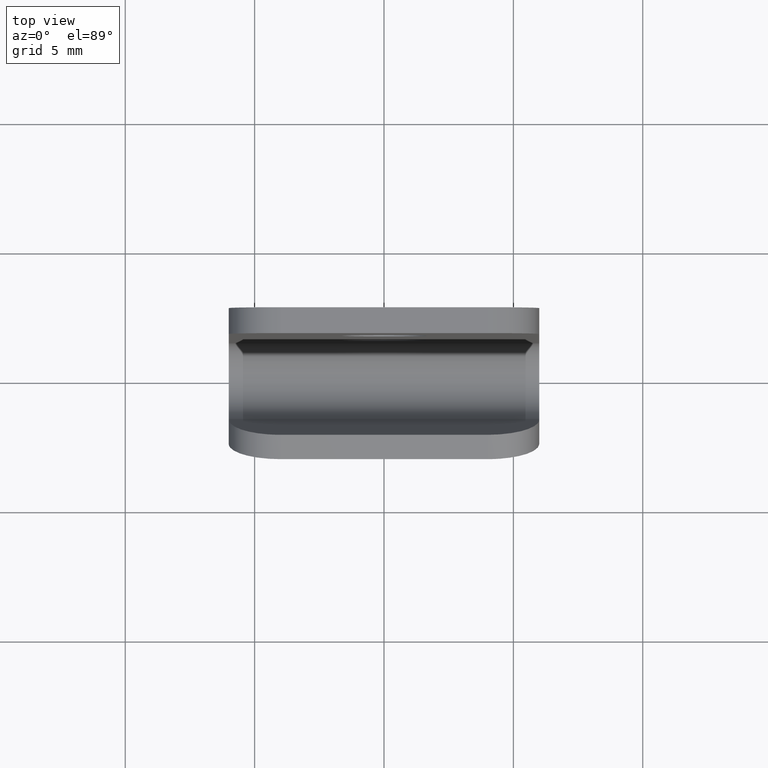
[diagram: clean part render]
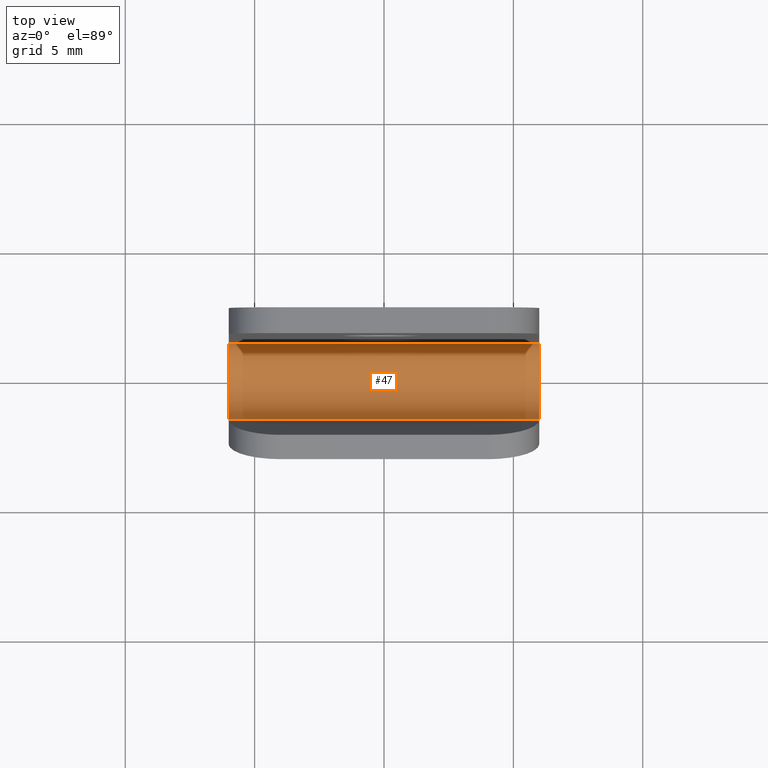
[diagram: same view with one face highlighted and labeled with its STEP entity id]
A machine part, top view. The second image highlights one B-rep face of the part: STEP entity #47.
In plain terms, the highlighted cylindrical surface (partial cylindrical patch) has radius 1.5 mm, axis along (1, -0, -0).
Its self-contained STEP definition (entity closure, byte-faithful):
#47=ADVANCED_FACE('',(#129),#128,.F.);
#128=CYLINDRICAL_SURFACE('',#280,1.50000000000E+00);
#129=FACE_OUTER_BOUND('',#281,.T.);
#277=CARTESIAN_POINT('',(9.94000000000E+02,0.00000000000E+00,2.50000000000E+00));
#278=DIRECTION('',(1.00000000000E+00,-0.00000000000E+00,-0.00000000000E+00));
#279=DIRECTION('',(0.00000000000E+00,-1.56434465040E-01,9.87688340595E-01));
#280=AXIS2_PLACEMENT_3D('',#277,#278,#279);
#281=EDGE_LOOP('',(#376,#377,#378,#379));
#376=ORIENTED_EDGE('',*,*,#442,.T.);
#377=ORIENTED_EDGE('',*,*,#457,.F.);
#378=ORIENTED_EDGE('',*,*,#456,.F.);
#379=ORIENTED_EDGE('',*,*,#458,.T.);
#442=EDGE_CURVE('',#550,#543,#551,.T.);
#456=EDGE_CURVE('',#637,#609,#644,.T.);
#457=EDGE_CURVE('',#609,#543,#650,.T.);
#458=EDGE_CURVE('',#637,#550,#656,.T.);
#543=VERTEX_POINT('',#836);
#550=VERTEX_POINT('',#840);
#551=CIRCLE('',#844,1.50000000000E+00);
#609=VERTEX_POINT('',#874);
#637=VERTEX_POINT('',#891);
#644=CIRCLE('',#898,1.50000000000E+00);
#650=LINE('',#899,#900);
#656=LINE('',#902,#903);
#836=CARTESIAN_POINT('',(-6.00000000000E+00,-1.42658477444E+00,2.03647450844E+00));
#840=CARTESIAN_POINT('',(-6.00000000000E+00,1.50000000000E+00,2.50000000000E+00));
#841=CARTESIAN_POINT('',(-6.00000000000E+00,0.00000000000E+00,2.50000000000E+00));
#842=DIRECTION('',(-1.00000000000E+00,-0.00000000000E+00,0.00000000000E+00));
#843=DIRECTION('',(0.00000000000E+00,-0.00000000000E+00,1.00000000000E+00));
#844=AXIS2_PLACEMENT_3D('',#841,#842,#843);
#874=CARTESIAN_POINT('',(6.00000000000E+00,-1.42658477444E+00,2.03647450844E+00));
#891=CARTESIAN_POINT('',(6.00000000000E+00,1.50000000000E+00,2.50000000000E+00));
#895=CARTESIAN_POINT('',(6.00000000000E+00,0.00000000000E+00,2.50000000000E+00));
#896=DIRECTION('',(-1.00000000000E+00,-0.00000000000E+00,0.00000000000E+00));
#897=DIRECTION('',(0.00000000000E+00,-0.00000000000E+00,1.00000000000E+00));
#898=AXIS2_PLACEMENT_3D('',#895,#896,#897);
#899=CARTESIAN_POINT('',(6.00000000000E+00,-1.42658477444E+00,2.03647450844E+00));
#900=VECTOR('',#901,1.20000000000E+01);
#901=DIRECTION('',(-1.00000000000E+00,0.00000000000E+00,0.00000000000E+00));
#902=CARTESIAN_POINT('',(6.00000000000E+00,1.50000000000E+00,2.50000000000E+00));
#903=VECTOR('',#904,1.20000000000E+01);
#904=DIRECTION('',(-1.00000000000E+00,0.00000000000E+00,0.00000000000E+00));